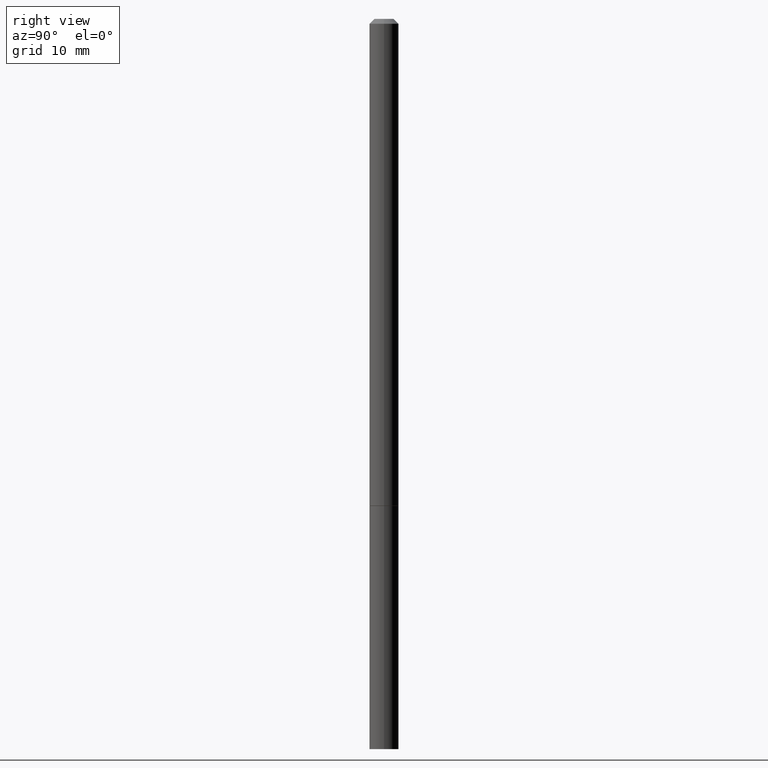
[diagram: clean part render]
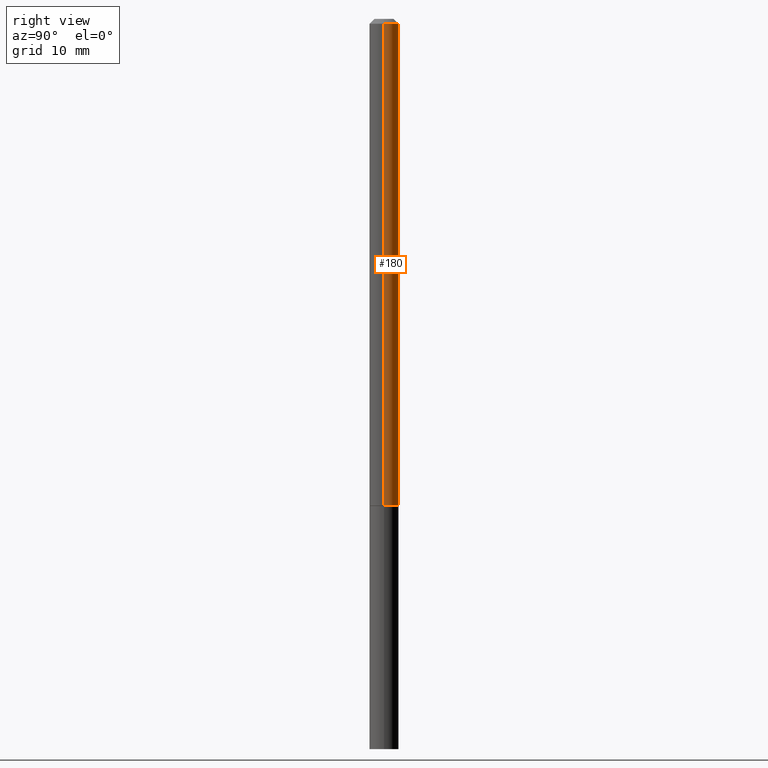
[diagram: same view with one face highlighted and labeled with its STEP entity id]
A machine part, right view. The second image highlights one B-rep face of the part: STEP entity #180.
In plain terms, the highlighted cylindrical surface (edge-blend (fillet) strip) has radius 1.4999 mm, axis along (-0, 0, 1).
Its self-contained STEP definition (entity closure, byte-faithful):
#5 = EDGE_CURVE ( 'NONE', #186, #293, #286, .T. ) ;
#23 = CYLINDRICAL_SURFACE ( 'NONE', #310, 0.05904999999999984567 ) ;
#26 = LINE ( 'NONE', #110, #56 ) ;
#45 = CARTESIAN_POINT ( 'NONE',  ( 0.05904999999999994975, -7.281833480291261254E-15, -1.967499999999999805 ) ) ;
#48 = DIRECTION ( 'NONE',  ( -2.445468806185136597E-29, 3.491481338843145583E-15, 1.000000000000000000 ) ) ;
#56 = VECTOR ( 'NONE', #327, 39.37007874015748143 ) ;
#68 = DIRECTION ( 'NONE',  ( -2.445468806185136877E-29, 3.491481338843145188E-15, 1.000000000000000000 ) ) ;
#81 = AXIS2_PLACEMENT_3D ( 'NONE', #121, #154, #263 ) ;
#87 = VERTEX_POINT ( 'NONE', #157 ) ;
#105 = CARTESIAN_POINT ( 'NONE',  ( 0.05904999999999974158, -4.749420335452702929E-16, -0.02000000000000007674 ) ) ;
#110 = CARTESIAN_POINT ( 'NONE',  ( 0.05904999999999984567, -4.123439461173729480E-16, 2.879382386107492513E-30 ) ) ;
#114 = EDGE_LOOP ( 'NONE', ( #237, #140, #220, #317 ) ) ;
#121 = CARTESIAN_POINT ( 'NONE',  ( 4.890937612370292426E-31, -6.982962677686317493E-17, -0.02000000000000007674 ) ) ;
#129 = VECTOR ( 'NONE', #68, 39.37007874015748143 ) ;
#130 = FACE_OUTER_BOUND ( 'NONE', #114, .T. ) ;
#138 = VERTEX_POINT ( 'NONE', #45 ) ;
#139 = DIRECTION ( 'NONE',  ( 1.000000000000000000, -6.982962677686261977E-15, 0.000000000000000000 ) ) ;
#140 = ORIENTED_EDGE ( 'NONE', *, *, #308, .T. ) ;
#154 = DIRECTION ( 'NONE',  ( -2.445468806185136597E-29, 3.491481338843145583E-15, 1.000000000000000000 ) ) ;
#157 = CARTESIAN_POINT ( 'NONE',  ( -0.05904999999999994975, -3.050084095009030195E-15, -1.967499999999999805 ) ) ;
#173 = EDGE_CURVE ( 'NONE', #138, #87, #348, .T. ) ;
#177 = EDGE_CURVE ( 'NONE', #138, #186, #26, .T. ) ;
#180 = ADVANCED_FACE ( 'NONE', ( #130 ), #23, .T. ) ;
#186 = VERTEX_POINT ( 'NONE', #105 ) ;
#192 = AXIS2_PLACEMENT_3D ( 'NONE', #273, #299, #139 ) ;
#194 = DIRECTION ( 'NONE',  ( 1.000000000000000000, -6.982962677686265922E-15, 4.876176775795935793E-29 ) ) ;
#217 = CARTESIAN_POINT ( 'NONE',  ( 0.000000000000000000, 0.000000000000000000, 0.000000000000000000 ) ) ;
#220 = ORIENTED_EDGE ( 'NONE', *, *, #5, .F. ) ;
#236 = LINE ( 'NONE', #353, #129 ) ;
#237 = ORIENTED_EDGE ( 'NONE', *, *, #173, .T. ) ;
#263 = DIRECTION ( 'NONE',  ( 1.000000000000000000, -6.982962677686265922E-15, 0.000000000000000000 ) ) ;
#273 = CARTESIAN_POINT ( 'NONE',  ( 4.811459876169255671E-29, -6.869489534173887122E-15, -1.967499999999999805 ) ) ;
#286 = CIRCLE ( 'NONE', #81, 0.05904999999999974158 ) ;
#287 = CARTESIAN_POINT ( 'NONE',  ( -0.05904999999999974158, 3.425143193405090089E-16, -0.02000000000000007674 ) ) ;
#293 = VERTEX_POINT ( 'NONE', #287 ) ;
#299 = DIRECTION ( 'NONE',  ( -2.445468806185136597E-29, 3.491481338843145583E-15, 1.000000000000000000 ) ) ;
#308 = EDGE_CURVE ( 'NONE', #87, #293, #236, .T. ) ;
#310 = AXIS2_PLACEMENT_3D ( 'NONE', #217, #48, #194 ) ;
#317 = ORIENTED_EDGE ( 'NONE', *, *, #177, .F. ) ;
#327 = DIRECTION ( 'NONE',  ( -2.445468806185136877E-29, 3.491481338843145188E-15, 1.000000000000000000 ) ) ;
#348 = CIRCLE ( 'NONE', #192, 0.05904999999999994975 ) ;
#353 = CARTESIAN_POINT ( 'NONE',  ( -0.05904999999999984567, 4.195754854663380632E-16, -2.904631170795514185E-30 ) ) ;